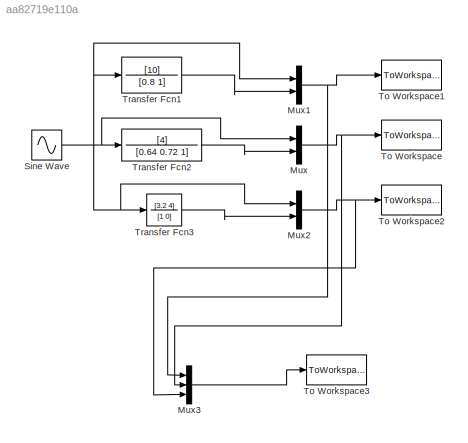
MODEL slx_aa82719e110a
KIND model
BLOCK [Mux] Mux
  DisplayOption = bar
  Inputs = 2
  Ports = [2, 1]
BLOCK [Mux] Mux1
  DisplayOption = bar
  Inputs = 2
  Ports = [2, 1]
BLOCK [Mux] Mux2
  DisplayOption = bar
  Inputs = 2
  Ports = [2, 1]
BLOCK [Mux] Mux3
  DisplayOption = bar
  Inputs = 3
  Ports = [3, 1]
BLOCK [Sin] Sine Wave
  Frequency = 100
  Ports = [0, 1]
  SampleTime = 0
BLOCK [ToWorkspace] To Workspace
  FixptAsFi = on
  MaxDataPoints = inf
  Ports = [1]
  SampleTime = -1
  Save2DSignal = 3-D array (concatenate along third dimension)
  SaveFormat = Timeseries
  VariableName = simout2
BLOCK [ToWorkspace] To Workspace1
  FixptAsFi = on
  MaxDataPoints = inf
  Ports = [1]
  SampleTime = -1
  Save2DSignal = 3-D array (concatenate along third dimension)
  SaveFormat = Timeseries
  VariableName = simout1
BLOCK [ToWorkspace] To Workspace2
  FixptAsFi = on
  MaxDataPoints = inf
  Ports = [1]
  SampleTime = -1
  Save2DSignal = 3-D array (concatenate along third dimension)
  SaveFormat = Timeseries
  VariableName = simout3
BLOCK [ToWorkspace] To Workspace3
  FixptAsFi = on
  MaxDataPoints = inf
  Ports = [1]
  SampleTime = -1
  Save2DSignal = 3-D array (concatenate along third dimension)
  SaveFormat = Timeseries
  VariableName = simout4
BLOCK [TransferFcn] Transfer Fcn1
  Denominator = [0.8 1]
  Numerator = [10]
BLOCK [TransferFcn] Transfer Fcn2
  Denominator = [0.64 0.72 1]
  Numerator = [4]
BLOCK [TransferFcn] Transfer Fcn3
  Denominator = [1 0]
  Numerator = [3.2 4]
NET Mux1:1 -> Mux3:1, To Workspace1:1
NET Mux2:1 -> Mux3:3, To Workspace2:1
LINE Mux3:1 -> To Workspace3:1
NET Mux:1 -> Mux3:2, To Workspace:1
NET Sine Wave:1 -> Mux1:1, Mux2:1, Mux:1, Transfer Fcn1:1, Transfer Fcn2:1, Transfer Fcn3:1
LINE Transfer Fcn1:1 -> Mux1:2
LINE Transfer Fcn2:1 -> Mux:2
LINE Transfer Fcn3:1 -> Mux2:2
note: NET lines group one-source signal fan-out (src -> all destinations, sorted); 1:1 wires keep LINE
